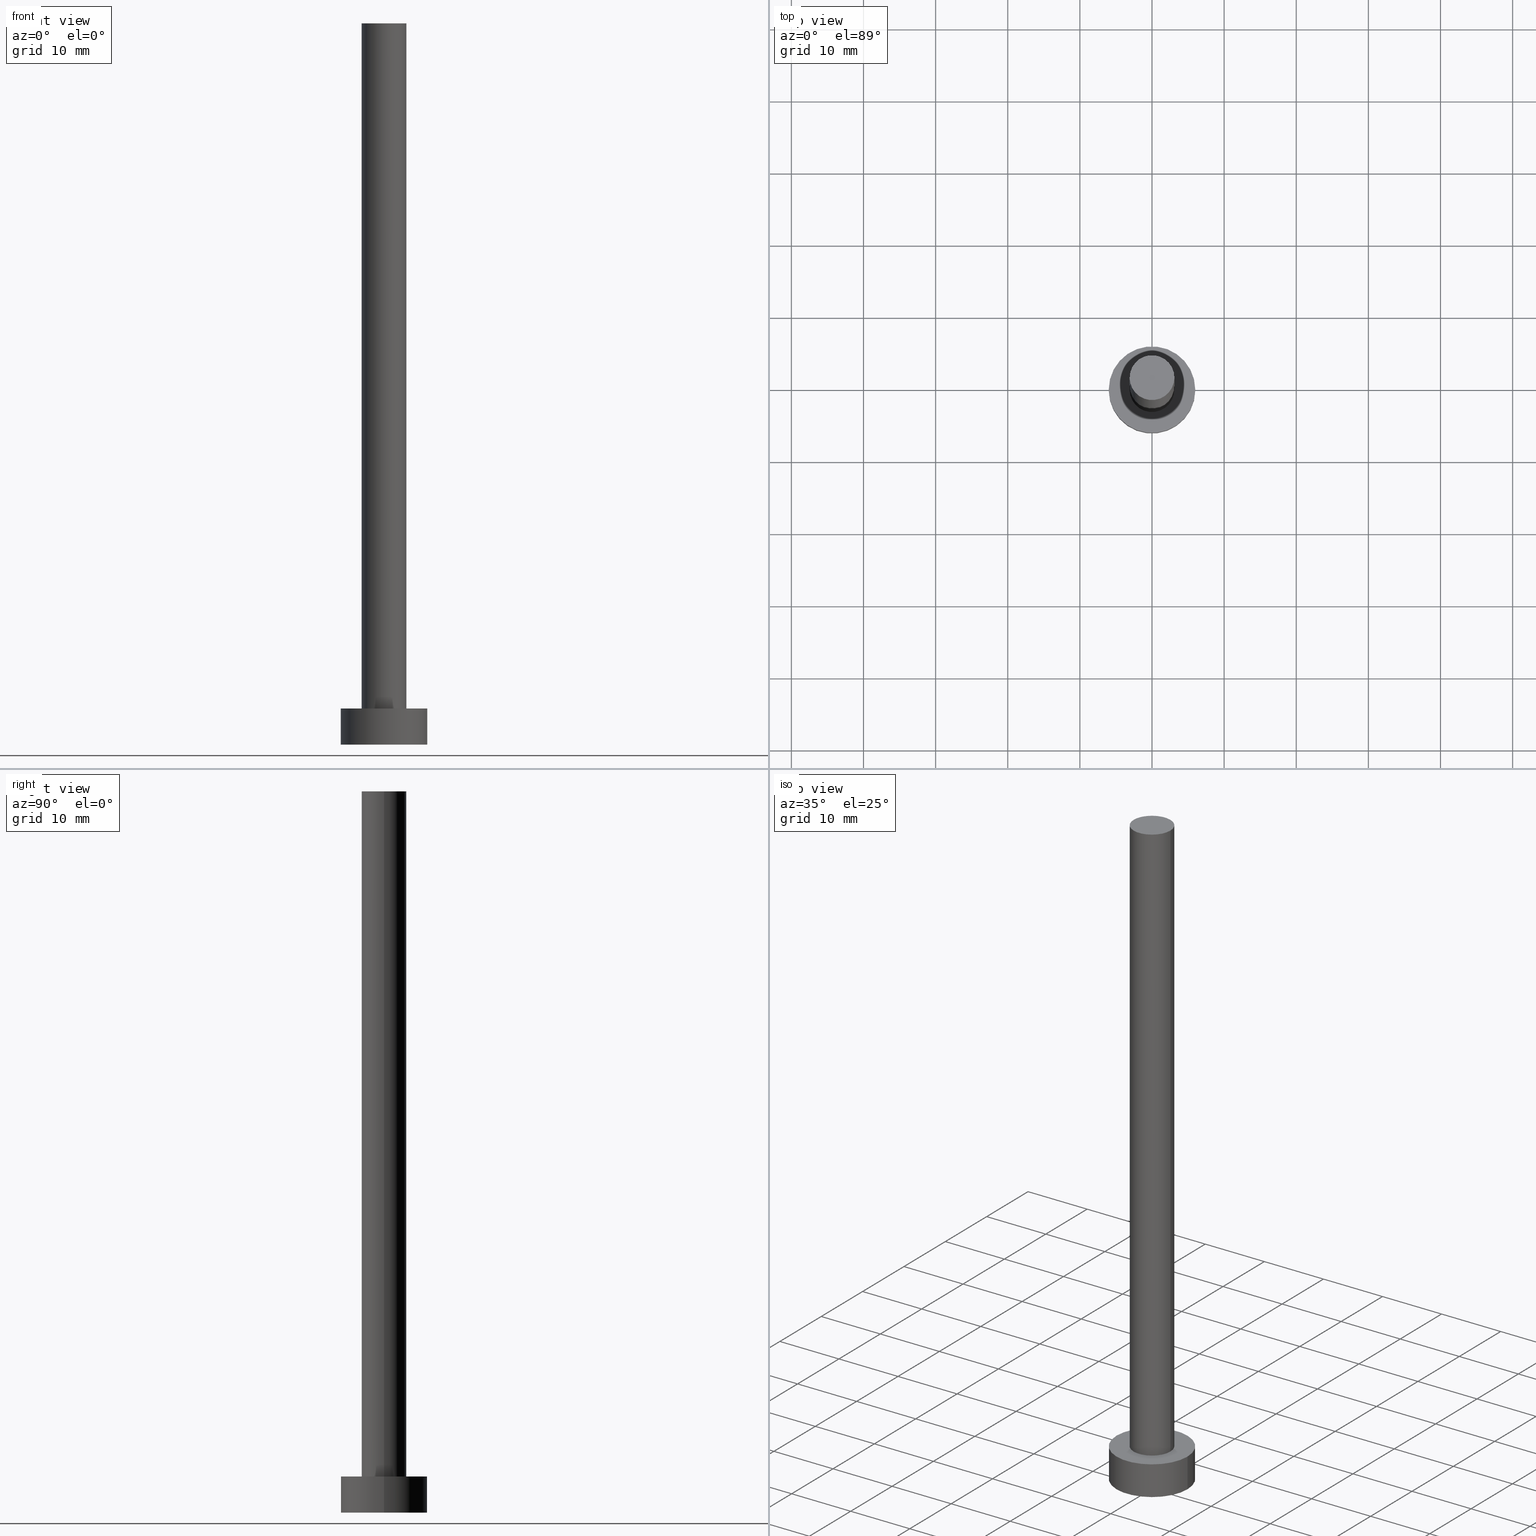
[diagram: canonical four-view strip — front | top / right | iso, engineering-drawing reading convention]
A machine part, canonical four-view strip (front | top / right | iso — engineering-drawing reading convention). The complete STEP part file that produces these views, byte-faithful:
ISO-10303-21;
HEADER;
FILE_DESCRIPTION (( 'STEP AP203' ),
    '1' );
FILE_NAME ('beb7.STEP',
    '2023-02-13T15:43:23',
    ( '' ),
    ( '' ),
    'SwSTEP 2.0',
    'SolidWorks 2019',
    '' );
FILE_SCHEMA (( 'CONFIG_CONTROL_DESIGN' ));
ENDSEC;

DATA;
#1 = CC_DESIGN_PERSON_AND_ORGANIZATION_ASSIGNMENT ( #219, #83, ( #53 ) ) ;
#2 = VERTEX_POINT ( 'NONE', #91 ) ;
#3 = AXIS2_PLACEMENT_3D ( 'NONE', #209, #197, #37 ) ;
#4 = DATE_AND_TIME ( #239, #195 ) ;
#5 = AXIS2_PLACEMENT_3D ( 'NONE', #106, #135, #116 ) ;
#6 = DATE_AND_TIME ( #238, #63 ) ;
#7 = CARTESIAN_POINT ( 'NONE',  ( 0.000000000000000000, 0.000000000000000000, 0.000000000000000000 ) ) ;
#8 = ORIENTED_EDGE ( 'NONE', *, *, #81, .T. ) ;
#9 = CYLINDRICAL_SURFACE ( 'NONE', #206, 6.000000000000000888 ) ;
#10 = ADVANCED_FACE ( 'NONE', ( #145 ), #52, .T. ) ;
#11 = VERTEX_POINT ( 'NONE', #134 ) ;
#12 = DIRECTION ( 'NONE',  ( 1.000000000000000000, 0.000000000000000000, 0.000000000000000000 ) ) ;
#13 = PLANE ( 'NONE',  #245 ) ;
#14 = ADVANCED_FACE ( 'NONE', ( #188, #126 ), #249, .T. ) ;
#15 = PERSON_AND_ORGANIZATION ( #47, #208 ) ;
#16 = CIRCLE ( 'NONE', #113, 6.000000000000000888 ) ;
#17 = DIRECTION ( 'NONE',  ( 0.000000000000000000, 0.000000000000000000, 1.000000000000000000 ) ) ;
#18 = MANIFOLD_SOLID_BREP ( 'P�idat vysunut�m3', #95 ) ;
#19 =( NAMED_UNIT ( * ) SI_UNIT ( $, .STERADIAN. ) SOLID_ANGLE_UNIT ( ) );
#20 = VERTEX_POINT ( 'NONE', #171 ) ;
#21 = CARTESIAN_POINT ( 'NONE',  ( 0.000000000000000000, 0.000000000000000000, 5.000000000000000000 ) ) ;
#22 = EDGE_LOOP ( 'NONE', ( #144, #216 ) ) ;
#23 = CARTESIAN_POINT ( 'NONE',  ( 3.100000000000000089, 3.796405077356794918E-16, 100.0000000000000000 ) ) ;
#24 = PERSON_AND_ORGANIZATION ( #47, #208 ) ;
#25 = PRODUCT_RELATED_PRODUCT_CATEGORY ( 'detail', '', ( #201 ) ) ;
#26 = ORIENTED_EDGE ( 'NONE', *, *, #223, .F. ) ;
#27 = CARTESIAN_POINT ( 'NONE',  ( -6.000000000000000888, 0.000000000000000000, 5.000000000000000000 ) ) ;
#28 = PERSON_AND_ORGANIZATION_ROLE ( 'design_supplier' ) ;
#29 = CYLINDRICAL_SURFACE ( 'NONE', #36, 6.000000000000000888 ) ;
#30 = APPLICATION_CONTEXT ( 'configuration controlled 3d designs of mechanical parts and assemblies' ) ;
#31 = ORIENTED_EDGE ( 'NONE', *, *, #167, .F. ) ;
#32 = DIRECTION ( 'NONE',  ( -1.000000000000000000, 0.000000000000000000, 0.000000000000000000 ) ) ;
#33 = CIRCLE ( 'NONE', #124, 6.000000000000000888 ) ;
#34 = ORIENTED_EDGE ( 'NONE', *, *, #140, .T. ) ;
#35 = ORIENTED_EDGE ( 'NONE', *, *, #38, .F. ) ;
#36 = AXIS2_PLACEMENT_3D ( 'NONE', #229, #107, #32 ) ;
#37 = DIRECTION ( 'NONE',  ( -1.000000000000000000, 0.000000000000000000, 0.000000000000000000 ) ) ;
#38 = EDGE_CURVE ( 'NONE', #2, #80, #48, .T. ) ;
#39 = VERTEX_POINT ( 'NONE', #154 ) ;
#40 = LINE ( 'NONE', #112, #117 ) ;
#41 = DIRECTION ( 'NONE',  ( 0.000000000000000000, 0.000000000000000000, 1.000000000000000000 ) ) ;
#42 = AXIS2_PLACEMENT_3D ( 'NONE', #228, #146, #55 ) ;
#43 = EDGE_CURVE ( 'NONE', #11, #20, #74, .T. ) ;
#44 = APPROVAL_STATUS ( 'not_yet_approved' ) ;
#45 = LOCAL_TIME ( 16, 43, 23.00000000000000000, #65 ) ;
#46 = COORDINATED_UNIVERSAL_TIME_OFFSET ( 1, 0, .AHEAD. ) ;
#47 = PERSON ( 'NEUR�EN�', 'NEUR�EN�', 'NEUR�EN�', ('NEUR�EN�'), ('NEUR�EN�'), ('NEUR�EN�') ) ;
#48 = CIRCLE ( 'NONE', #42, 3.100000000000000089 ) ;
#49 = DIRECTION ( 'NONE',  ( 0.000000000000000000, 0.000000000000000000, 1.000000000000000000 ) ) ;
#50 = SECURITY_CLASSIFICATION ( '', '', #139 ) ;
#51 = DIRECTION ( 'NONE',  ( -0.000000000000000000, -0.000000000000000000, -1.000000000000000000 ) ) ;
#52 = CYLINDRICAL_SURFACE ( 'NONE', #162, 3.100000000000000089 ) ;
#53 = PRODUCT_DEFINITION_FORMATION_WITH_SPECIFIED_SOURCE ( 'LIBOVOLN�', '', #201, .NOT_KNOWN. ) ;
#54 = CARTESIAN_POINT ( 'NONE',  ( -6.000000000000000888, 0.000000000000000000, 5.000000000000000000 ) ) ;
#55 = DIRECTION ( 'NONE',  ( 1.000000000000000000, 0.000000000000000000, 0.000000000000000000 ) ) ;
#56 = DIRECTION ( 'NONE',  ( 1.000000000000000000, 0.000000000000000000, 0.000000000000000000 ) ) ;
#57 = EDGE_CURVE ( 'NONE', #39, #20, #40, .T. ) ;
#58 = EDGE_LOOP ( 'NONE', ( #252, #31 ) ) ;
#59 =( LENGTH_UNIT ( ) NAMED_UNIT ( * ) SI_UNIT ( .MILLI., .METRE. ) );
#60 = VECTOR ( 'NONE', #51, 1000.000000000000000 ) ;
#61 = APPROVAL_STATUS ( 'not_yet_approved' ) ;
#62 = UNCERTAINTY_MEASURE_WITH_UNIT (LENGTH_MEASURE( 1.000000000000000082E-05 ), #59, 'distance_accuracy_value', 'NONE');
#63 = LOCAL_TIME ( 16, 43, 23.00000000000000000, #255 ) ;
#64 = CALENDAR_DATE ( 2023, 13, 2 ) ;
#65 = COORDINATED_UNIVERSAL_TIME_OFFSET ( 1, 0, .AHEAD. ) ;
#66 = PERSON_AND_ORGANIZATION ( #47, #208 ) ;
#67 = DIRECTION ( 'NONE',  ( 0.000000000000000000, 0.000000000000000000, 1.000000000000000000 ) ) ;
#68 = PRODUCT_DEFINITION ( 'NEZN�M�', '', #53, #166 ) ;
#69 = FACE_OUTER_BOUND ( 'NONE', #110, .T. ) ;
#70 = EDGE_CURVE ( 'NONE', #150, #11, #226, .T. ) ;
#71 = DIRECTION ( 'NONE',  ( 1.000000000000000000, 0.000000000000000000, 0.000000000000000000 ) ) ;
#72 = CIRCLE ( 'NONE', #248, 6.000000000000000888 ) ;
#73 = DIRECTION ( 'NONE',  ( -0.000000000000000000, -0.000000000000000000, -1.000000000000000000 ) ) ;
#74 = CIRCLE ( 'NONE', #165, 6.000000000000000888 ) ;
#75 = CC_DESIGN_PERSON_AND_ORGANIZATION_ASSIGNMENT ( #172, #155, ( #201 ) ) ;
#76 = CARTESIAN_POINT ( 'NONE',  ( 0.000000000000000000, 0.000000000000000000, 100.0000000000000000 ) ) ;
#77 = ORIENTED_EDGE ( 'NONE', *, *, #167, .T. ) ;
#78 = CARTESIAN_POINT ( 'NONE',  ( 0.000000000000000000, 0.000000000000000000, 5.000000000000000000 ) ) ;
#79 = APPROVAL ( #176, 'NEUR�EN�' ) ;
#80 = VERTEX_POINT ( 'NONE', #254 ) ;
#81 = EDGE_CURVE ( 'NONE', #80, #2, #90, .T. ) ;
#82 = CC_DESIGN_APPROVAL ( #85, ( #68 ) ) ;
#83 = PERSON_AND_ORGANIZATION_ROLE ( 'creator' ) ;
#84 = DIRECTION ( 'NONE',  ( 1.000000000000000000, 0.000000000000000000, 0.000000000000000000 ) ) ;
#85 = APPROVAL ( #44, 'NEUR�EN�' ) ;
#86 = VERTEX_POINT ( 'NONE', #250 ) ;
#87 = DIRECTION ( 'NONE',  ( 0.000000000000000000, 0.000000000000000000, 1.000000000000000000 ) ) ;
#88 = ADVANCED_FACE ( 'NONE', ( #69 ), #13, .T. ) ;
#89 = AXIS2_PLACEMENT_3D ( 'NONE', #21, #17, #186 ) ;
#90 = CIRCLE ( 'NONE', #156, 3.100000000000000089 ) ;
#91 = CARTESIAN_POINT ( 'NONE',  ( 3.100000000000000089, 3.796405077356794918E-16, 5.000000000000000000 ) ) ;
#92 = EDGE_LOOP ( 'NONE', ( #253, #236, #132, #181 ) ) ;
#93 = DIRECTION ( 'NONE',  ( -1.000000000000000000, 0.000000000000000000, 0.000000000000000000 ) ) ;
#94 = LOCAL_TIME ( 16, 43, 23.00000000000000000, #46 ) ;
#95 = CLOSED_SHELL ( 'NONE', ( #108, #136, #101, #14, #214, #10, #88 ) ) ;
#96 = DIRECTION ( 'NONE',  ( -0.000000000000000000, -0.000000000000000000, -1.000000000000000000 ) ) ;
#97 = PERSON_AND_ORGANIZATION_ROLE ( 'creator' ) ;
#98 = ORIENTED_EDGE ( 'NONE', *, *, #221, .T. ) ;
#99 = MECHANICAL_CONTEXT ( 'NONE', #30, 'mechanical' ) ;
#100 = APPROVAL_PERSON_ORGANIZATION ( #119, #79, #242 ) ;
#101 = ADVANCED_FACE ( 'NONE', ( #149 ), #9, .T. ) ;
#102 = CC_DESIGN_APPROVAL ( #79, ( #53 ) ) ;
#103 = CARTESIAN_POINT ( 'NONE',  ( 0.000000000000000000, 0.000000000000000000, 100.0000000000000000 ) ) ;
#104 = SHAPE_DEFINITION_REPRESENTATION ( #143, #174 ) ;
#105 = DIRECTION ( 'NONE',  ( 0.000000000000000000, 0.000000000000000000, 1.000000000000000000 ) ) ;
#106 = CARTESIAN_POINT ( 'NONE',  ( 0.000000000000000000, 0.000000000000000000, 100.0000000000000000 ) ) ;
#107 = DIRECTION ( 'NONE',  ( -0.000000000000000000, -0.000000000000000000, -1.000000000000000000 ) ) ;
#108 = ADVANCED_FACE ( 'NONE', ( #243 ), #232, .T. ) ;
#109 = DIRECTION ( 'NONE',  ( 0.000000000000000000, 0.000000000000000000, 1.000000000000000000 ) ) ;
#110 = EDGE_LOOP ( 'NONE', ( #138, #34 ) ) ;
#111 = DATE_AND_TIME ( #189, #222 ) ;
#112 = CARTESIAN_POINT ( 'NONE',  ( 6.000000000000000888, 7.347880794884120722E-16, 5.000000000000000000 ) ) ;
#113 = AXIS2_PLACEMENT_3D ( 'NONE', #159, #67, #56 ) ;
#114 = CARTESIAN_POINT ( 'NONE',  ( 0.000000000000000000, 0.000000000000000000, 100.0000000000000000 ) ) ;
#115 = APPLICATION_PROTOCOL_DEFINITION ( 'international standard', 'config_control_design', 1994, #30 ) ;
#116 = DIRECTION ( 'NONE',  ( 1.000000000000000000, 0.000000000000000000, 0.000000000000000000 ) ) ;
#117 = VECTOR ( 'NONE', #96, 1000.000000000000000 ) ;
#118 = CALENDAR_DATE ( 2023, 13, 2 ) ;
#119 = PERSON_AND_ORGANIZATION ( #47, #208 ) ;
#120 = CC_DESIGN_DATE_AND_TIME_ASSIGNMENT ( #4, #123, ( #50 ) ) ;
#121 = CC_DESIGN_SECURITY_CLASSIFICATION ( #50, ( #53 ) ) ;
#122 = DIRECTION ( 'NONE',  ( 1.000000000000000000, 0.000000000000000000, 0.000000000000000000 ) ) ;
#123 = DATE_TIME_ROLE ( 'classification_date' ) ;
#124 = AXIS2_PLACEMENT_3D ( 'NONE', #7, #87, #84 ) ;
#125 = DIRECTION ( 'NONE',  ( 1.000000000000000000, 0.000000000000000000, -0.000000000000000000 ) ) ;
#126 = FACE_OUTER_BOUND ( 'NONE', #22, .T. ) ;
#127 = DIRECTION ( 'NONE',  ( -0.000000000000000000, -0.000000000000000000, -1.000000000000000000 ) ) ;
#128 = EDGE_CURVE ( 'NONE', #240, #2, #220, .T. ) ;
#129 = CARTESIAN_POINT ( 'NONE',  ( 3.100000000000000089, 3.796405077356794918E-16, 100.0000000000000000 ) ) ;
#130 = PLANE ( 'NONE',  #218 ) ;
#131 = CARTESIAN_POINT ( 'NONE',  ( 0.000000000000000000, 0.000000000000000000, 5.000000000000000000 ) ) ;
#132 = ORIENTED_EDGE ( 'NONE', *, *, #38, .T. ) ;
#133 = APPROVAL_ROLE ( '' ) ;
#134 = CARTESIAN_POINT ( 'NONE',  ( -6.000000000000000888, 0.000000000000000000, 0.000000000000000000 ) ) ;
#135 = DIRECTION ( 'NONE',  ( 0.000000000000000000, 0.000000000000000000, 1.000000000000000000 ) ) ;
#136 = ADVANCED_FACE ( 'NONE', ( #199 ), #29, .T. ) ;
#137 = APPROVAL_ROLE ( '' ) ;
#138 = ORIENTED_EDGE ( 'NONE', *, *, #223, .T. ) ;
#139 = SECURITY_CLASSIFICATION_LEVEL ( 'unclassified' ) ;
#140 = EDGE_CURVE ( 'NONE', #240, #86, #175, .T. ) ;
#141 = ORIENTED_EDGE ( 'NONE', *, *, #57, .T. ) ;
#142 = EDGE_CURVE ( 'NONE', #150, #39, #72, .T. ) ;
#143 = PRODUCT_DEFINITION_SHAPE ( 'NONE', 'NONE',  #68 ) ;
#144 = ORIENTED_EDGE ( 'NONE', *, *, #142, .T. ) ;
#145 = FACE_OUTER_BOUND ( 'NONE', #168, .T. ) ;
#146 = DIRECTION ( 'NONE',  ( 0.000000000000000000, 0.000000000000000000, 1.000000000000000000 ) ) ;
#147 = DIRECTION ( 'NONE',  ( -0.000000000000000000, -0.000000000000000000, -1.000000000000000000 ) ) ;
#148 = DIRECTION ( 'NONE',  ( -1.000000000000000000, 0.000000000000000000, 0.000000000000000000 ) ) ;
#149 = FACE_OUTER_BOUND ( 'NONE', #224, .T. ) ;
#150 = VERTEX_POINT ( 'NONE', #27 ) ;
#151 = APPLICATION_PROTOCOL_DEFINITION ( 'international standard', 'config_control_design', 1994, #192 ) ;
#152 = DIRECTION ( 'NONE',  ( 0.000000000000000000, 0.000000000000000000, 1.000000000000000000 ) ) ;
#153 = ORIENTED_EDGE ( 'NONE', *, *, #81, .F. ) ;
#154 = CARTESIAN_POINT ( 'NONE',  ( 6.000000000000000888, 7.347880794884120722E-16, 5.000000000000000000 ) ) ;
#155 = PERSON_AND_ORGANIZATION_ROLE ( 'design_owner' ) ;
#156 = AXIS2_PLACEMENT_3D ( 'NONE', #78, #152, #235 ) ;
#157 = DATE_AND_TIME ( #64, #45 ) ;
#158 = COORDINATED_UNIVERSAL_TIME_OFFSET ( 1, 0, .AHEAD. ) ;
#159 = CARTESIAN_POINT ( 'NONE',  ( 0.000000000000000000, 0.000000000000000000, 5.000000000000000000 ) ) ;
#160 = PERSON_AND_ORGANIZATION ( #47, #208 ) ;
#161 = APPROVAL_PERSON_ORGANIZATION ( #217, #85, #133 ) ;
#162 = AXIS2_PLACEMENT_3D ( 'NONE', #114, #147, #93 ) ;
#163 = LINE ( 'NONE', #227, #169 ) ;
#164 = DIRECTION ( 'NONE',  ( 1.000000000000000000, 0.000000000000000000, -0.000000000000000000 ) ) ;
#165 = AXIS2_PLACEMENT_3D ( 'NONE', #247, #210, #71 ) ;
#166 = DESIGN_CONTEXT ( 'detailed design', #192, 'design' ) ;
#167 = EDGE_CURVE ( 'NONE', #20, #11, #33, .T. ) ;
#168 = EDGE_LOOP ( 'NONE', ( #207, #26, #98, #8 ) ) ;
#169 = VECTOR ( 'NONE', #127, 1000.000000000000000 ) ;
#170 =( NAMED_UNIT ( * ) PLANE_ANGLE_UNIT ( ) SI_UNIT ( $, .RADIAN. ) );
#171 = CARTESIAN_POINT ( 'NONE',  ( 6.000000000000000888, 7.347880794884120722E-16, 0.000000000000000000 ) ) ;
#172 = PERSON_AND_ORGANIZATION ( #47, #208 ) ;
#173 = CIRCLE ( 'NONE', #5, 3.100000000000000089 ) ;
#174 = ADVANCED_BREP_SHAPE_REPRESENTATION ( 'beb7', ( #18, #213 ), #183 ) ;
#175 = CIRCLE ( 'NONE', #177, 3.100000000000000089 ) ;
#176 = APPROVAL_STATUS ( 'not_yet_approved' ) ;
#177 = AXIS2_PLACEMENT_3D ( 'NONE', #76, #109, #184 ) ;
#178 = APPROVAL_DATE_TIME ( #157, #79 ) ;
#179 = CC_DESIGN_PERSON_AND_ORGANIZATION_ASSIGNMENT ( #66, #194, ( #50 ) ) ;
#180 = ORIENTED_EDGE ( 'NONE', *, *, #204, .F. ) ;
#181 = ORIENTED_EDGE ( 'NONE', *, *, #221, .F. ) ;
#182 = CC_DESIGN_DATE_AND_TIME_ASSIGNMENT ( #6, #241, ( #68 ) ) ;
#183 =( GEOMETRIC_REPRESENTATION_CONTEXT ( 3 ) GLOBAL_UNCERTAINTY_ASSIGNED_CONTEXT ( ( #62 ) ) GLOBAL_UNIT_ASSIGNED_CONTEXT ( ( #59, #170, #19 ) ) REPRESENTATION_CONTEXT ( 'NONE', 'WORKASPACE' ) );
#184 = DIRECTION ( 'NONE',  ( 1.000000000000000000, 0.000000000000000000, 0.000000000000000000 ) ) ;
#185 = CARTESIAN_POINT ( 'NONE',  ( 0.000000000000000000, 0.000000000000000000, 5.000000000000000000 ) ) ;
#186 = DIRECTION ( 'NONE',  ( 1.000000000000000000, 0.000000000000000000, -0.000000000000000000 ) ) ;
#187 = APPROVAL_DATE_TIME ( #111, #85 ) ;
#188 = FACE_BOUND ( 'NONE', #234, .T. ) ;
#189 = CALENDAR_DATE ( 2023, 13, 2 ) ;
#190 = APPROVAL ( #61, 'NEUR�EN�' ) ;
#191 = VECTOR ( 'NONE', #205, 1000.000000000000000 ) ;
#192 = APPLICATION_CONTEXT ( 'configuration controlled 3d designs of mechanical parts and assemblies' ) ;
#193 = DATE_AND_TIME ( #118, #94 ) ;
#194 = PERSON_AND_ORGANIZATION_ROLE ( 'classification_officer' ) ;
#195 = LOCAL_TIME ( 16, 43, 23.00000000000000000, #158 ) ;
#196 = ORIENTED_EDGE ( 'NONE', *, *, #70, .F. ) ;
#197 = DIRECTION ( 'NONE',  ( -0.000000000000000000, -0.000000000000000000, -1.000000000000000000 ) ) ;
#198 = CC_DESIGN_PERSON_AND_ORGANIZATION_ASSIGNMENT ( #15, #97, ( #68 ) ) ;
#199 = FACE_OUTER_BOUND ( 'NONE', #246, .T. ) ;
#200 = ORIENTED_EDGE ( 'NONE', *, *, #57, .F. ) ;
#201 = PRODUCT ( 'beb7', 'beb7', '', ( #99 ) ) ;
#202 = APPROVAL_DATE_TIME ( #193, #190 ) ;
#203 = ORIENTED_EDGE ( 'NONE', *, *, #43, .T. ) ;
#204 = EDGE_CURVE ( 'NONE', #39, #150, #16, .T. ) ;
#205 = DIRECTION ( 'NONE',  ( -0.000000000000000000, -0.000000000000000000, -1.000000000000000000 ) ) ;
#206 = AXIS2_PLACEMENT_3D ( 'NONE', #131, #73, #148 ) ;
#207 = ORIENTED_EDGE ( 'NONE', *, *, #128, .F. ) ;
#208 = ORGANIZATION ( 'NEUR�EN�', 'NEUR�EN�', '' ) ;
#209 = CARTESIAN_POINT ( 'NONE',  ( 0.000000000000000000, 0.000000000000000000, 100.0000000000000000 ) ) ;
#210 = DIRECTION ( 'NONE',  ( 0.000000000000000000, 0.000000000000000000, 1.000000000000000000 ) ) ;
#211 = COORDINATED_UNIVERSAL_TIME_OFFSET ( 1, 0, .AHEAD. ) ;
#212 = ORIENTED_EDGE ( 'NONE', *, *, #70, .T. ) ;
#213 = AXIS2_PLACEMENT_3D ( 'NONE', #215, #41, #12 ) ;
#214 = ADVANCED_FACE ( 'NONE', ( #230 ), #130, .F. ) ;
#215 = CARTESIAN_POINT ( 'NONE',  ( 0.000000000000000000, 0.000000000000000000, 0.000000000000000000 ) ) ;
#216 = ORIENTED_EDGE ( 'NONE', *, *, #204, .T. ) ;
#217 = PERSON_AND_ORGANIZATION ( #47, #208 ) ;
#218 = AXIS2_PLACEMENT_3D ( 'NONE', #244, #105, #125 ) ;
#219 = PERSON_AND_ORGANIZATION ( #47, #208 ) ;
#220 = LINE ( 'NONE', #129, #60 ) ;
#221 = EDGE_CURVE ( 'NONE', #86, #80, #163, .T. ) ;
#222 = LOCAL_TIME ( 16, 43, 23.00000000000000000, #211 ) ;
#223 = EDGE_CURVE ( 'NONE', #86, #240, #173, .T. ) ;
#224 = EDGE_LOOP ( 'NONE', ( #200, #233, #212, #203 ) ) ;
#225 = APPROVAL_PERSON_ORGANIZATION ( #160, #190, #137 ) ;
#226 = LINE ( 'NONE', #54, #191 ) ;
#227 = CARTESIAN_POINT ( 'NONE',  ( -3.100000000000000089, 0.000000000000000000, 100.0000000000000000 ) ) ;
#228 = CARTESIAN_POINT ( 'NONE',  ( 0.000000000000000000, 0.000000000000000000, 5.000000000000000000 ) ) ;
#229 = CARTESIAN_POINT ( 'NONE',  ( 0.000000000000000000, 0.000000000000000000, 5.000000000000000000 ) ) ;
#230 = FACE_OUTER_BOUND ( 'NONE', #58, .T. ) ;
#231 = CC_DESIGN_PERSON_AND_ORGANIZATION_ASSIGNMENT ( #24, #28, ( #53 ) ) ;
#232 = CYLINDRICAL_SURFACE ( 'NONE', #3, 3.100000000000000089 ) ;
#233 = ORIENTED_EDGE ( 'NONE', *, *, #142, .F. ) ;
#234 = EDGE_LOOP ( 'NONE', ( #153, #35 ) ) ;
#235 = DIRECTION ( 'NONE',  ( 1.000000000000000000, 0.000000000000000000, 0.000000000000000000 ) ) ;
#236 = ORIENTED_EDGE ( 'NONE', *, *, #128, .T. ) ;
#237 = CC_DESIGN_APPROVAL ( #190, ( #50 ) ) ;
#238 = CALENDAR_DATE ( 2023, 13, 2 ) ;
#239 = CALENDAR_DATE ( 2023, 13, 2 ) ;
#240 = VERTEX_POINT ( 'NONE', #23 ) ;
#241 = DATE_TIME_ROLE ( 'creation_date' ) ;
#242 = APPROVAL_ROLE ( '' ) ;
#243 = FACE_OUTER_BOUND ( 'NONE', #92, .T. ) ;
#244 = CARTESIAN_POINT ( 'NONE',  ( 0.000000000000000000, 0.000000000000000000, 0.000000000000000000 ) ) ;
#245 = AXIS2_PLACEMENT_3D ( 'NONE', #103, #251, #164 ) ;
#246 = EDGE_LOOP ( 'NONE', ( #180, #141, #77, #196 ) ) ;
#247 = CARTESIAN_POINT ( 'NONE',  ( 0.000000000000000000, 0.000000000000000000, 0.000000000000000000 ) ) ;
#248 = AXIS2_PLACEMENT_3D ( 'NONE', #185, #49, #122 ) ;
#249 = PLANE ( 'NONE',  #89 ) ;
#250 = CARTESIAN_POINT ( 'NONE',  ( -3.100000000000000089, 0.000000000000000000, 100.0000000000000000 ) ) ;
#251 = DIRECTION ( 'NONE',  ( 0.000000000000000000, 0.000000000000000000, 1.000000000000000000 ) ) ;
#252 = ORIENTED_EDGE ( 'NONE', *, *, #43, .F. ) ;
#253 = ORIENTED_EDGE ( 'NONE', *, *, #140, .F. ) ;
#254 = CARTESIAN_POINT ( 'NONE',  ( -3.100000000000000089, 0.000000000000000000, 5.000000000000000000 ) ) ;
#255 = COORDINATED_UNIVERSAL_TIME_OFFSET ( 1, 0, .AHEAD. ) ;
ENDSEC;
END-ISO-10303-21;
